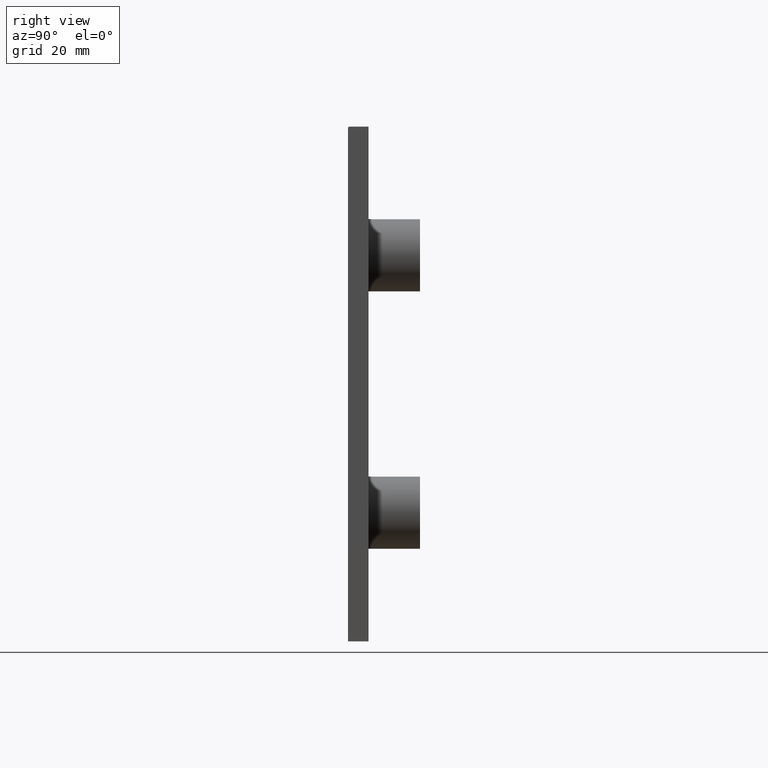
[diagram: clean part render]
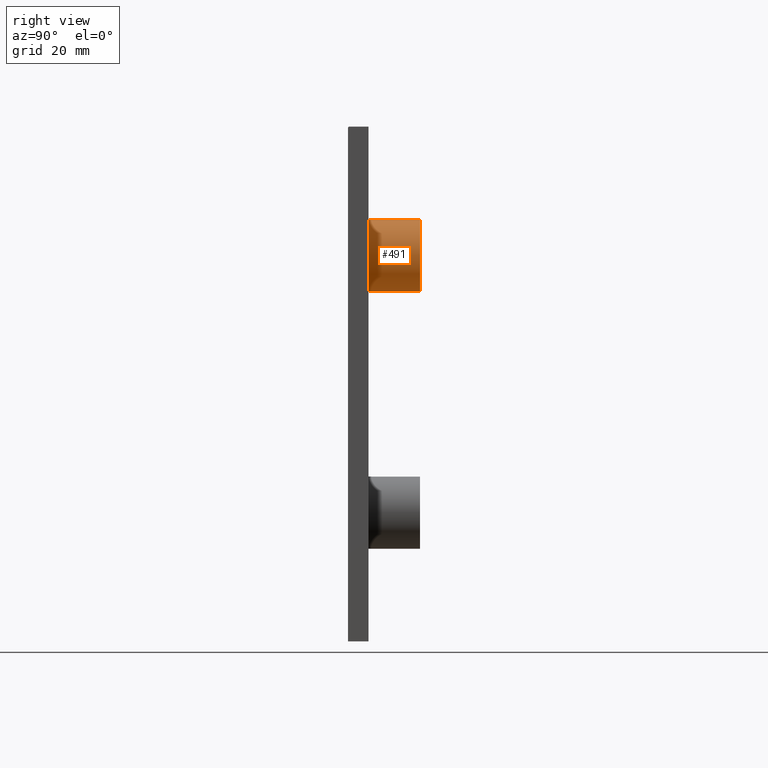
[diagram: same view with one face highlighted and labeled with its STEP entity id]
A machine part, right view. The second image highlights one B-rep face of the part: STEP entity #491.
In plain terms, the highlighted cylindrical surface (edge-blend (fillet) strip) has radius 7 mm, axis along (-0, -1, -0).
Its self-contained STEP definition (entity closure, byte-faithful):
#32 = CARTESIAN_POINT ( 'NONE',  ( 24.99999999999999300, 14.00000000000000000, 25.00000000000003600 ) ) ;
#33 = DIRECTION ( 'NONE',  ( -0.0000000000000000000, -1.000000000000000000, -0.0000000000000000000 ) ) ;
#66 = DIRECTION ( 'NONE',  ( 0.0000000000000000000, 0.0000000000000000000, -1.000000000000000000 ) ) ;
#71 = VERTEX_POINT ( 'NONE', #189 ) ;
#84 = VERTEX_POINT ( 'NONE', #153 ) ;
#90 = VERTEX_POINT ( 'NONE', #184 ) ;
#91 = VERTEX_POINT ( 'NONE', #137 ) ;
#137 = CARTESIAN_POINT ( 'NONE',  ( 24.99999999999999300, 14.00000000000000000, 18.00000000000003600 ) ) ;
#153 = CARTESIAN_POINT ( 'NONE',  ( 24.99999999999999300, 4.000000000000000000, 18.00000000000003600 ) ) ;
#184 = CARTESIAN_POINT ( 'NONE',  ( 24.99999999999999300, 4.000000000000000000, 32.00000000000003600 ) ) ;
#189 = CARTESIAN_POINT ( 'NONE',  ( 24.99999999999999300, 14.00000000000000000, 32.00000000000003600 ) ) ;
#248 = ORIENTED_EDGE ( 'NONE', *, *, #902, .F. ) ;
#250 = ORIENTED_EDGE ( 'NONE', *, *, #897, .T. ) ;
#367 = EDGE_LOOP ( 'NONE', ( #395, #394, #250, #248 ) ) ;
#394 = ORIENTED_EDGE ( 'NONE', *, *, #900, .T. ) ;
#395 = ORIENTED_EDGE ( 'NONE', *, *, #907, .F. ) ;
#410 = CARTESIAN_POINT ( 'NONE',  ( 24.99999999999999300, 4.000000000000000000, 25.00000000000003600 ) ) ;
#411 = DIRECTION ( 'NONE',  ( 0.0000000000000000000, 1.000000000000000000, 0.0000000000000000000 ) ) ;
#412 = DIRECTION ( 'NONE',  ( 0.0000000000000000000, 0.0000000000000000000, 1.000000000000000000 ) ) ;
#418 = CARTESIAN_POINT ( 'NONE',  ( 24.99999999999999300, 14.00000000000000000, 32.00000000000003600 ) ) ;
#419 = DIRECTION ( 'NONE',  ( -0.0000000000000000000, -1.000000000000000000, -0.0000000000000000000 ) ) ;
#422 = CARTESIAN_POINT ( 'NONE',  ( 24.99999999999999300, 14.00000000000000000, 18.00000000000003600 ) ) ;
#423 = DIRECTION ( 'NONE',  ( -0.0000000000000000000, -1.000000000000000000, -0.0000000000000000000 ) ) ;
#434 = CARTESIAN_POINT ( 'NONE',  ( 24.99999999999999300, 14.00000000000000000, 25.00000000000003600 ) ) ;
#435 = DIRECTION ( 'NONE',  ( 0.0000000000000000000, 1.000000000000000000, 0.0000000000000000000 ) ) ;
#436 = DIRECTION ( 'NONE',  ( 0.0000000000000000000, 0.0000000000000000000, 1.000000000000000000 ) ) ;
#491 = ADVANCED_FACE ( 'NONE', ( #658 ), #659, .T. ) ;
#541 = AXIS2_PLACEMENT_3D ( 'NONE', #32, #33, #66 ) ;
#583 = AXIS2_PLACEMENT_3D ( 'NONE', #410, #411, #412 ) ;
#587 = AXIS2_PLACEMENT_3D ( 'NONE', #434, #435, #436 ) ;
#658 = FACE_OUTER_BOUND ( 'NONE', #367, .T. ) ;
#659 = CYLINDRICAL_SURFACE ( 'NONE', #541, 6.999999999999999100 ) ;
#747 = CIRCLE ( 'NONE', #583, 6.999999999999999100 ) ;
#751 = LINE ( 'NONE', #418, #752 ) ;
#752 = VECTOR ( 'NONE', #419, 1000.000000000000000 ) ;
#755 = LINE ( 'NONE', #422, #756 ) ;
#756 = VECTOR ( 'NONE', #423, 1000.000000000000000 ) ;
#763 = CIRCLE ( 'NONE', #587, 6.999999999999999100 ) ;
#897 = EDGE_CURVE ( 'NONE', #90, #84, #747, .T. ) ;
#900 = EDGE_CURVE ( 'NONE', #71, #90, #751, .T. ) ;
#902 = EDGE_CURVE ( 'NONE', #91, #84, #755, .T. ) ;
#907 = EDGE_CURVE ( 'NONE', #71, #91, #763, .T. ) ;